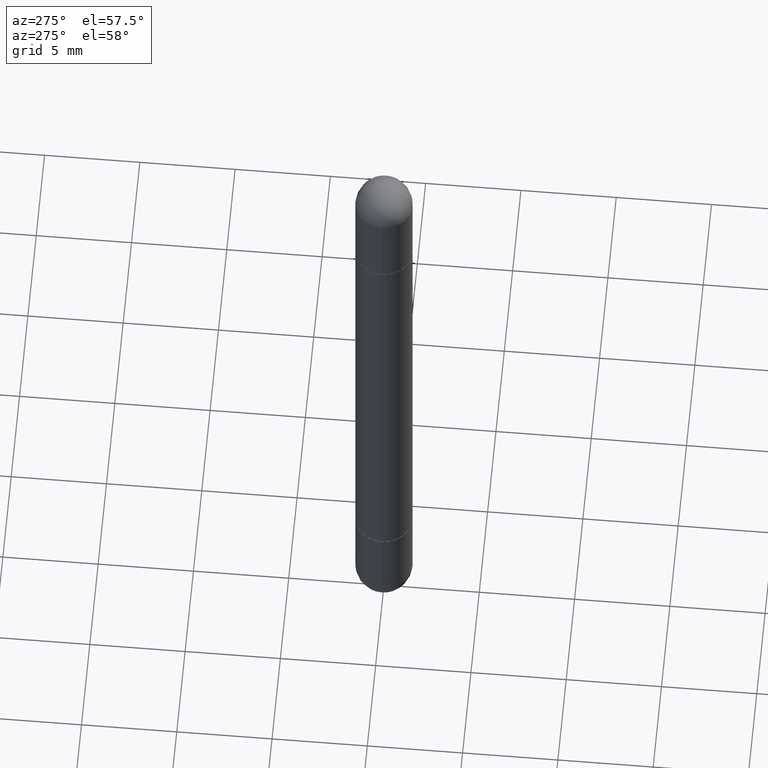
[diagram: clean part render]
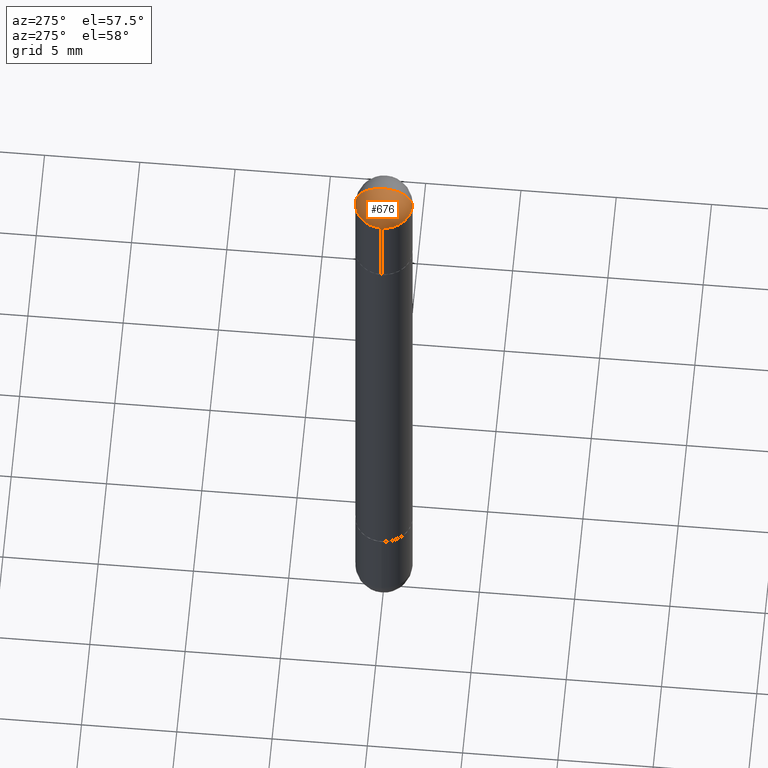
[diagram: same view with one face highlighted and labeled with its STEP entity id]
A machine part, auxiliary view. The second image highlights one B-rep face of the part: STEP entity #676.
In plain terms, the highlighted spherical surface has radius 1.4999 mm.
Its self-contained STEP definition (entity closure, byte-faithful):
#51 = CARTESIAN_POINT ( 'NONE',  ( 3.514260947928350449E-29, -5.017433257984542594E-15, -0.05905000000000028976 ) ) ;
#80 = AXIS2_PLACEMENT_3D ( 'NONE', #237, #361, #102 ) ;
#85 = CARTESIAN_POINT ( 'NONE',  ( 3.183141170014464762E-29, -5.491615626124592102E-15, -0.05905000000000028976 ) ) ;
#102 = DIRECTION ( 'NONE',  ( 1.000000000000000000, -6.982962677686270655E-15, 0.000000000000000000 ) ) ;
#108 = EDGE_CURVE ( 'NONE', #206, #521, #794, .T. ) ;
#137 = DIRECTION ( 'NONE',  ( 1.000000000000000000, -6.982962677686265922E-15, -4.883557194083112340E-29 ) ) ;
#153 = CARTESIAN_POINT ( 'NONE',  ( 4.123439461174084467E-16, 0.05904999999999487742, -0.05905000000000008159 ) ) ;
#179 = ORIENTED_EDGE ( 'NONE', *, *, #613, .F. ) ;
#206 = VERTEX_POINT ( 'NONE', #663 ) ;
#237 = CARTESIAN_POINT ( 'NONE',  ( 3.514260947928350449E-29, -5.017433257984542594E-15, -0.05905000000000028976 ) ) ;
#286 = DIRECTION ( 'NONE',  ( -1.000000000000000000, 6.982962677686265922E-15, 4.883557194083112340E-29 ) ) ;
#315 = EDGE_CURVE ( 'NONE', #521, #608, #448, .T. ) ;
#327 = ORIENTED_EDGE ( 'NONE', *, *, #315, .T. ) ;
#346 = DIRECTION ( 'NONE',  ( 1.000000000000000000, -6.860497997771530774E-15, -4.840798879624142912E-29 ) ) ;
#359 = CARTESIAN_POINT ( 'NONE',  ( -4.051124067683763770E-16, -0.05905000000000539678, -0.05905000000000049099 ) ) ;
#361 = DIRECTION ( 'NONE',  ( 2.445468806185136597E-29, -3.491481338843145583E-15, 1.000000000000000000 ) ) ;
#367 = AXIS2_PLACEMENT_3D ( 'NONE', #51, #540, #371 ) ;
#371 = DIRECTION ( 'NONE',  ( 1.000000000000000000, -6.982962677686270655E-15, 0.000000000000000000 ) ) ;
#374 = ORIENTED_EDGE ( 'NONE', *, *, #108, .T. ) ;
#408 = DIRECTION ( 'NONE',  ( 6.982962677686265922E-15, 1.000000000000000000, 3.469747663417762014E-15 ) ) ;
#448 = CIRCLE ( 'NONE', #80, 0.05905000000000001914 ) ;
#487 = AXIS2_PLACEMENT_3D ( 'NONE', #85, #137, #408 ) ;
#499 = CIRCLE ( 'NONE', #617, 0.05905000000000025506 ) ;
#521 = VERTEX_POINT ( 'NONE', #153 ) ;
#535 = CARTESIAN_POINT ( 'NONE',  ( 3.183141170014464762E-29, -5.491615626124592102E-15, -0.05905000000000028976 ) ) ;
#540 = DIRECTION ( 'NONE',  ( 2.445468806185136597E-29, -3.491481338843145583E-15, 1.000000000000000000 ) ) ;
#596 = EDGE_LOOP ( 'NONE', ( #179, #374, #327, #654 ) ) ;
#603 = FACE_OUTER_BOUND ( 'NONE', #596, .T. ) ;
#608 = VERTEX_POINT ( 'NONE', #666 ) ;
#613 = EDGE_CURVE ( 'NONE', #206, #780, #499, .T. ) ;
#617 = AXIS2_PLACEMENT_3D ( 'NONE', #768, #346, #785 ) ;
#646 = AXIS2_PLACEMENT_3D ( 'NONE', #535, #286, #733 ) ;
#654 = ORIENTED_EDGE ( 'NONE', *, *, #731, .T. ) ;
#663 = CARTESIAN_POINT ( 'NONE',  ( 3.330070981488499955E-29, -5.694171829508798064E-15, -3.414809992080329023E-17 ) ) ;
#666 = CARTESIAN_POINT ( 'NONE',  ( -0.05905000000000001914, -4.303062891628101254E-15, -0.05905000000000028976 ) ) ;
#676 = ADVANCED_FACE ( 'NONE', ( #603 ), #714, .T. ) ;
#714 = SPHERICAL_SURFACE ( 'NONE', #487, 0.05905000000000025506 ) ;
#731 = EDGE_CURVE ( 'NONE', #608, #780, #766, .T. ) ;
#733 = DIRECTION ( 'NONE',  ( -6.982962677686266711E-15, -1.000000000000000000, 0.000000000000000000 ) ) ;
#766 = CIRCLE ( 'NONE', #367, 0.05905000000000001914 ) ;
#768 = CARTESIAN_POINT ( 'NONE',  ( 3.183141170014464762E-29, -5.491615626124592102E-15, -0.05905000000000028976 ) ) ;
#780 = VERTEX_POINT ( 'NONE', #359 ) ;
#785 = DIRECTION ( 'NONE',  ( 6.860497997771530774E-15, 1.000000000000000000, 0.000000000000000000 ) ) ;
#794 = CIRCLE ( 'NONE', #646, 0.05905000000000025506 ) ;